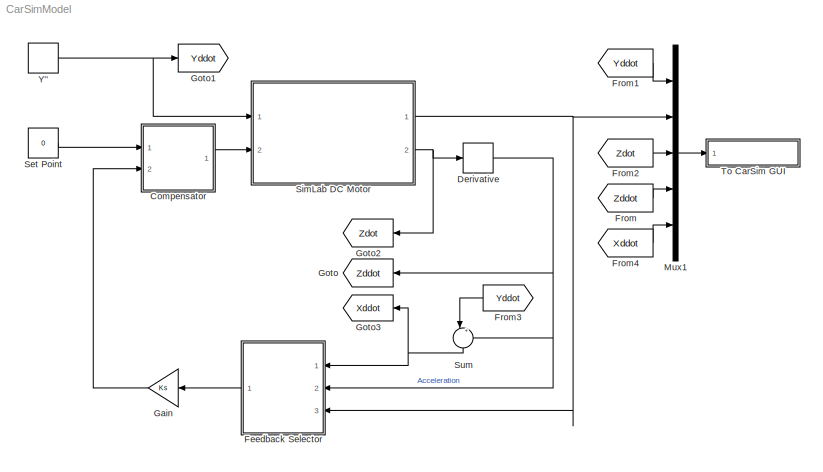
MODEL CarSimModel
KIND model
CONFIG InitFcn = load('<userpath><path>')
CONFIG PostLoadFcn = CarSim(gcs)
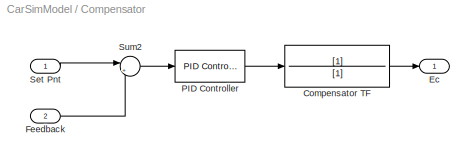
BLOCK [SubSystem] Compensator
  MaskHideContents = off
  MinAlgLoopOccurrences = off
  Ports = [2, 1]
  RTWSystemCode = Auto
  TreatAsAtomicUnit = off
BLOCK [TransferFcn] Compensator/Compensator TF
  Denominator = [1]
BLOCK [Outport] Compensator/Ec
  BusOutputAsStruct = off
  IconDisplay = Port number
BLOCK [Inport] Compensator/Feedback
  IconDisplay = Port number
  Port = 2
BLOCK [Reference] Compensator/PID Controller  REF=simulink_extras/Additional\nLinear/PID Controller\n(with Approximate\nDerivative)
  D = 12
  I = 0
  N = 100
  P = 275
  Ports = [1, 1]
  ShowPortLabels = on
  SourceBlock = simulink_extras/Additional\nLinear/PID Controller\n(with Approximate\nDerivative)
  SourceType = PID(2) Controller
BLOCK [Inport] Compensator/Set Pnt
  IconDisplay = Port number
BLOCK [Sum] Compensator/Sum2
  IconShape = round
  InputSameDT = off
  Inputs = |+-
  OutDataTypeMode = Inherit via internal rule
  Ports = [2, 1]
BLOCK [Derivative] Derivative
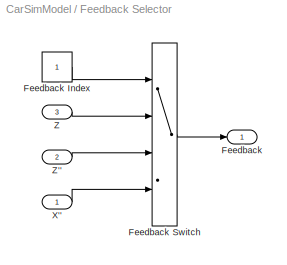
BLOCK [SubSystem] Feedback Selector
  MaskHideContents = off
  MinAlgLoopOccurrences = off
  Ports = [3, 1]
  RTWSystemCode = Auto
  TreatAsAtomicUnit = off
BLOCK [Outport] Feedback Selector/Feedback
  BusOutputAsStruct = off
  IconDisplay = Port number
BLOCK [Constant] Feedback Selector/Feedback Index
BLOCK [MultiPortSwitch] Feedback Selector/Feedback Switch
  InputSameDT = off
  Inputs = 3
  Ports = [4, 1]
BLOCK [Inport] Feedback Selector/X''
  IconDisplay = Port number
BLOCK [Inport] Feedback Selector/Z
  IconDisplay = Port number
  Port = 3
BLOCK [Inport] Feedback Selector/Z''
  IconDisplay = Port number
  Port = 2
BLOCK [From] From
  CloseFcn = tagdialog Close
  GotoTag = Zddot
BLOCK [From] From1
  CloseFcn = tagdialog Close
  GotoTag = Yddot
BLOCK [From] From2
  CloseFcn = tagdialog Close
  GotoTag = Zdot
BLOCK [From] From3
  CloseFcn = tagdialog Close
  GotoTag = Yddot
BLOCK [From] From4
  CloseFcn = tagdialog Close
  GotoTag = Xddot
BLOCK [Gain] Gain
  Gain = Ks
BLOCK [Goto] Goto
  GotoTag = Zddot
  TagVisibility = local
BLOCK [Goto] Goto1
  GotoTag = Yddot
  TagVisibility = local
BLOCK [Goto] Goto2
  GotoTag = Zdot
  TagVisibility = local
BLOCK [Goto] Goto3
  GotoTag = Xddot
  TagVisibility = local
BLOCK [Mux] Mux1
  DisplayOption = bar
  Inputs = 5
  Ports = [5, 1]
BLOCK [Constant] Set Point
  Value = 0
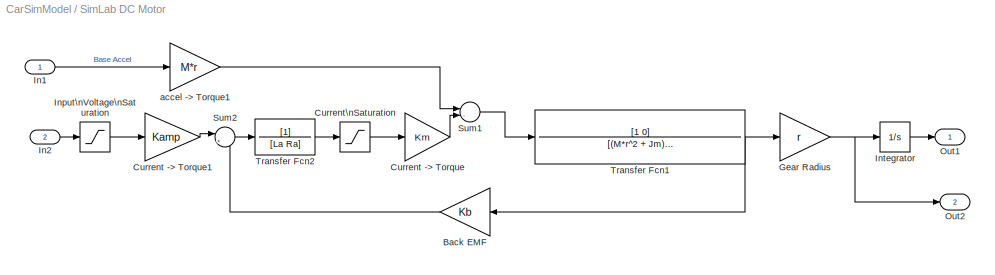
BLOCK [SubSystem] SimLab DC Motor
  MaskDisplay = port_label('input', 1, 'Base Accel')\nport_label('input', 2, 'Voltage')\nport_label('output', 1, 'Position')\nport_label('output', 2, 'Speed')
  MaskHideContents = off
  MaskIconFrame = on
  MaskIconOpaque = on
  MaskIconRotate = none
  MaskIconUnits = autoscale
  MinAlgLoopOccurrences = off
  NameChangeFcn = CarSim('BlockNameChange', gcb, 'PlantBlock', [], [])
  Ports = [2, 2]
  RTWSystemCode = Auto
  TreatAsAtomicUnit = off
BLOCK [Gain] SimLab DC Motor/Back EMF
  Gain = Kb
BLOCK [Gain] SimLab DC Motor/Current -> Torque
  Gain = Km
BLOCK [Gain] SimLab DC Motor/Current -> Torque1
  Gain = Kamp
BLOCK [Saturate] SimLab DC Motor/Current\nSaturation
  LowerLimit = -4
  UpperLimit = +4
BLOCK [Gain] SimLab DC Motor/Gear Radius
  Gain = r
BLOCK [Inport] SimLab DC Motor/In1
  IconDisplay = Port number
BLOCK [Inport] SimLab DC Motor/In2
  IconDisplay = Port number
  Port = 2
BLOCK [Saturate] SimLab DC Motor/Input\nVoltage\nSaturation
  LowerLimit = -10
  UpperLimit = +10
BLOCK [Integrator] SimLab DC Motor/Integrator
  Ports = [1, 1]
BLOCK [Outport] SimLab DC Motor/Out1
  IconDisplay = Port number
BLOCK [Outport] SimLab DC Motor/Out2
  IconDisplay = Port number
  Port = 2
BLOCK [Sum] SimLab DC Motor/Sum1
  IconShape = round
  InputSameDT = off
  Inputs = |-+
  OutDataTypeMode = Inherit via internal rule
  Ports = [2, 1]
BLOCK [Sum] SimLab DC Motor/Sum2
  IconShape = round
  InputSameDT = off
  Inputs = |+-
  OutDataTypeMode = Inherit via internal rule
  Ports = [2, 1]
BLOCK [TransferFcn] SimLab DC Motor/Transfer Fcn1
  Denominator = [(M*r^2 + Jm) (c*r^2 + Bm) (k*r^2)]
  Numerator = [1 0]
BLOCK [TransferFcn] SimLab DC Motor/Transfer Fcn2
  Denominator = [La Ra]
BLOCK [Gain] SimLab DC Motor/accel -> Torque1
  Gain = M*r
BLOCK [Sum] Sum
  IconShape = round
  InputSameDT = off
  Inputs = |++
  OutDataTypeMode = Inherit via internal rule
  Ports = [2, 1]
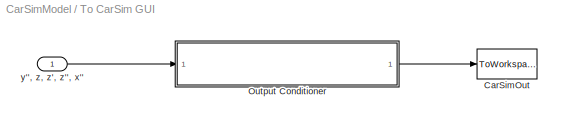
BLOCK [SubSystem] To CarSim GUI
  MaskHideContents = off
  MinAlgLoopOccurrences = off
  NameChangeFcn = CarSim('BlockNameChange', gcb, 'CarSimBlock', [], [])
  Ports = [1]
  RTWSystemCode = Auto
  TreatAsAtomicUnit = off
BLOCK [ToWorkspace] To CarSim GUI/CarSimOut
  MaxDataPoints = inf
  NameChangeFcn = CarSim('BlockNameChange', gcb, 'CarSimOut', [], [])
  SampleTime = -1
  SaveFormat = Array
  StopFcn = CarSim('StoreSimResults',2, guidata(2),carSimOut); clear carSimOut;
  VariableName = carSimOut
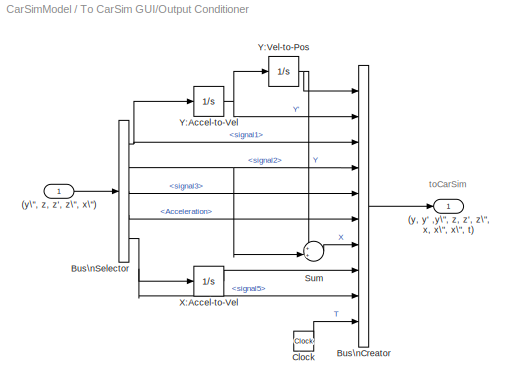
BLOCK [SubSystem] To CarSim GUI/Output Conditioner
  MaskHideContents = off
  MinAlgLoopOccurrences = off
  NameChangeFcn = CarSim('BlockNameChange', gcb, 'OutputConditioner', [], [])
  Ports = [1, 1]
  RTWSystemCode = Auto
  TreatAsAtomicUnit = off
BLOCK [Outport] To CarSim GUI/Output Conditioner/(y, y' ,y\", z, z', z\", x, x\", x\", t)
  BusOutputAsStruct = off
  IconDisplay = Port number
  PortDimensions = 10
BLOCK [Inport] To CarSim GUI/Output Conditioner/(y\", z, z', z\", x\")
  IconDisplay = Port number
BLOCK [BusCreator] To CarSim GUI/Output Conditioner/Bus\nCreator
  DisplayOption = bar
  Inputs = 10
  Ports = [10, 1]
BLOCK [BusSelector] To CarSim GUI/Output Conditioner/Bus\nSelector
  OutputSignals = signal1,signal2,signal3,Acceleration,signal5
  Ports = [1, 5]
BLOCK [Clock] To CarSim GUI/Output Conditioner/Clock
  Decimation = 10
BLOCK [Sum] To CarSim GUI/Output Conditioner/Sum
  IconShape = round
  InputSameDT = off
  Inputs = ++|
  OutDataTypeMode = Inherit via internal rule
  Ports = [2, 1]
  SaturateOnIntegerOverflow = off
BLOCK [Integrator] To CarSim GUI/Output Conditioner/X:Accel-to-Vel
  IgnoreLimit = off
  Ports = [1, 1]
BLOCK [Integrator] To CarSim GUI/Output Conditioner/Y:Accel-to-Vel
  IgnoreLimit = off
  Ports = [1, 1]
BLOCK [Integrator] To CarSim GUI/Output Conditioner/Y:Vel-to-Pos
  IgnoreLimit = off
  Ports = [1, 1]
BLOCK [Inport] To CarSim GUI/y'', z, z', z'', x''
  IconDisplay = Port number
BLOCK [S-Function] Y''
  FunctionName = RoundedDisplacementFcn
  MaskCallbackString = |||
  MaskDescription = Output either the position, velocity or acceleration of the Rounded Displacement function.
  MaskDisplay = plot(t,y)
  MaskEnableString = on,on,on,on
  MaskHelp = Generate RD(t), RD'(t), or RD''(t).\n\n\nDescription:\nRD(t) = A*(1-(1+gwt)e^(-gwt)), where A is the amplitude, g (gamma) is the intensity factor, w (omega) is the circular frequency.\n\n\nAmplitude: \nThe amplitude of the pulse, a real number.\n\ngw:\nThe intensity factor multiplied by the frequency (gamma*omega), where T = (2*pi)/gw.\n\nOutput:\nSelect whether to output the RD, or its first or s...<+59ch>
  MaskIconFrame = on
  MaskIconOpaque = on
  MaskIconRotate = none
  MaskIconUnits = normalized
  MaskInitialization = t = [0:0.01:1];\ny = 1-(1+t.*8).*exp(-t.*8);
  MaskPromptString = Amplitude:|Gamma*Omega:|Block Output:|Sample Time
  MaskStyleString = edit,edit,popup(Position|Velocity|Acceleration),edit
  MaskTabNameString = ,,,
  MaskToolTipString = on,on,on,on
  MaskTunableValueString = on,on,on,on
  MaskType = Rounded Displacement (RD)
  MaskValueString = -3|62.8319|Acceleration|0
  MaskVarAliasString = ,,,
  MaskVariables = X=@1;gw=@2;Output=@3;SampleTime=@4;
  MaskVisibilityString = on,on,on,on
  NameChangeFcn = CarSim('BlockNameChange', gcb, 'DistBlock', [], [])
  Parameters = X, gw, Output, SampleTime
  Ports = [0, 1]
ANNOTATION To CarSim GUI/Output Conditioner: toCarSim
LINE Compensator/Compensator TF:1 -> Compensator/Ec:1
LINE Compensator/Feedback:1 -> Compensator/Sum2:2
LINE Compensator/PID Controller:1 -> Compensator/Compensator TF:1
LINE Compensator/Set Pnt:1 -> Compensator/Sum2:1
LINE Compensator/Sum2:1 -> Compensator/PID Controller:1
LINE Compensator:1 -> SimLab DC Motor:2
NET Derivative:1 -> Feedback Selector:2, Goto:1, Sum:2
LINE Feedback Selector/Feedback Index:1 -> Feedback Selector/Feedback Switch:1
LINE Feedback Selector/Feedback Switch:1 -> Feedback Selector/Feedback:1
LINE Feedback Selector/X'':1 -> Feedback Selector/Feedback Switch:4
LINE Feedback Selector/Z'':1 -> Feedback Selector/Feedback Switch:3
LINE Feedback Selector/Z:1 -> Feedback Selector/Feedback Switch:2
LINE Feedback Selector:1 -> Gain:1
LINE From1:1 -> Mux1:1
LINE From2:1 -> Mux1:3
LINE From3:1 -> Sum:1
LINE From4:1 -> Mux1:5
LINE From:1 -> Mux1:4
LINE Gain:1 -> Compensator:2
LINE Mux1:1 -> To CarSim GUI:1
LINE Set Point:1 -> Compensator:1
LINE SimLab DC Motor/Back EMF:1 -> SimLab DC Motor/Sum2:2
LINE SimLab DC Motor/Current -> Torque1:1 -> SimLab DC Motor/Sum2:1
LINE SimLab DC Motor/Current -> Torque:1 -> SimLab DC Motor/Sum1:2
LINE SimLab DC Motor/Current\nSaturation:1 -> SimLab DC Motor/Current -> Torque:1
NET SimLab DC Motor/Gear Radius:1 -> SimLab DC Motor/Integrator:1, SimLab DC Motor/Out2:1
LINE SimLab DC Motor/In1:1 -> SimLab DC Motor/accel -> Torque1:1
LINE SimLab DC Motor/In2:1 -> SimLab DC Motor/Input\nVoltage\nSaturation:1
LINE SimLab DC Motor/Input\nVoltage\nSaturation:1 -> SimLab DC Motor/Current -> Torque1:1
LINE SimLab DC Motor/Integrator:1 -> SimLab DC Motor/Out1:1
LINE SimLab DC Motor/Sum1:1 -> SimLab DC Motor/Transfer Fcn1:1
LINE SimLab DC Motor/Sum2:1 -> SimLab DC Motor/Transfer Fcn2:1
NET SimLab DC Motor/Transfer Fcn1:1 -> SimLab DC Motor/Back EMF:1, SimLab DC Motor/Gear Radius:1
LINE SimLab DC Motor/Transfer Fcn2:1 -> SimLab DC Motor/Current\nSaturation:1
LINE SimLab DC Motor/accel -> Torque1:1 -> SimLab DC Motor/Sum1:1
NET SimLab DC Motor:1 -> Feedback Selector:3, Mux1:2
NET SimLab DC Motor:2 -> Derivative:1, Goto2:1
NET Sum:1 -> Feedback Selector:1, Goto3:1
LINE To CarSim GUI/Output Conditioner/(y\", z, z', z\", x\"):1 -> To CarSim GUI/Output Conditioner/Bus\nSelector:1
LINE To CarSim GUI/Output Conditioner/Bus\nCreator:1 -> To CarSim GUI/Output Conditioner/(y, y' ,y\", z, z', z\", x, x\", x\", t):1
NET To CarSim GUI/Output Conditioner/Bus\nSelector:1 -> To CarSim GUI/Output Conditioner/Bus\nCreator:3, To CarSim GUI/Output Conditioner/Y:Accel-to-Vel:1
NET To CarSim GUI/Output Conditioner/Bus\nSelector:2 -> To CarSim GUI/Output Conditioner/Bus\nCreator:4, To CarSim GUI/Output Conditioner/Sum:2
LINE To CarSim GUI/Output Conditioner/Bus\nSelector:3 -> To CarSim GUI/Output Conditioner/Bus\nCreator:5
LINE To CarSim GUI/Output Conditioner/Bus\nSelector:4 -> To CarSim GUI/Output Conditioner/Bus\nCreator:6
NET To CarSim GUI/Output Conditioner/Bus\nSelector:5 -> To CarSim GUI/Output Conditioner/Bus\nCreator:9, To CarSim GUI/Output Conditioner/X:Accel-to-Vel:1
LINE To CarSim GUI/Output Conditioner/Clock:1 -> To CarSim GUI/Output Conditioner/Bus\nCreator:10
LINE To CarSim GUI/Output Conditioner/Sum:1 -> To CarSim GUI/Output Conditioner/Bus\nCreator:7
LINE To CarSim GUI/Output Conditioner/X:Accel-to-Vel:1 -> To CarSim GUI/Output Conditioner/Bus\nCreator:8
NET To CarSim GUI/Output Conditioner/Y:Accel-to-Vel:1 -> To CarSim GUI/Output Conditioner/Bus\nCreator:2, To CarSim GUI/Output Conditioner/Y:Vel-to-Pos:1
NET To CarSim GUI/Output Conditioner/Y:Vel-to-Pos:1 -> To CarSim GUI/Output Conditioner/Bus\nCreator:1, To CarSim GUI/Output Conditioner/Sum:1
LINE To CarSim GUI/Output Conditioner:1 -> To CarSim GUI/CarSimOut:1
LINE To CarSim GUI/y'', z, z', z'', x'':1 -> To CarSim GUI/Output Conditioner:1
NET Y'':1 -> Goto1:1, SimLab DC Motor:1
note: NET lines group one-source signal fan-out (src -> all destinations, sorted); 1:1 wires keep LINE
note: 1 file-system path scrubbed to <path> (not preserved elsewhere — flat text is the only slx artifact)
